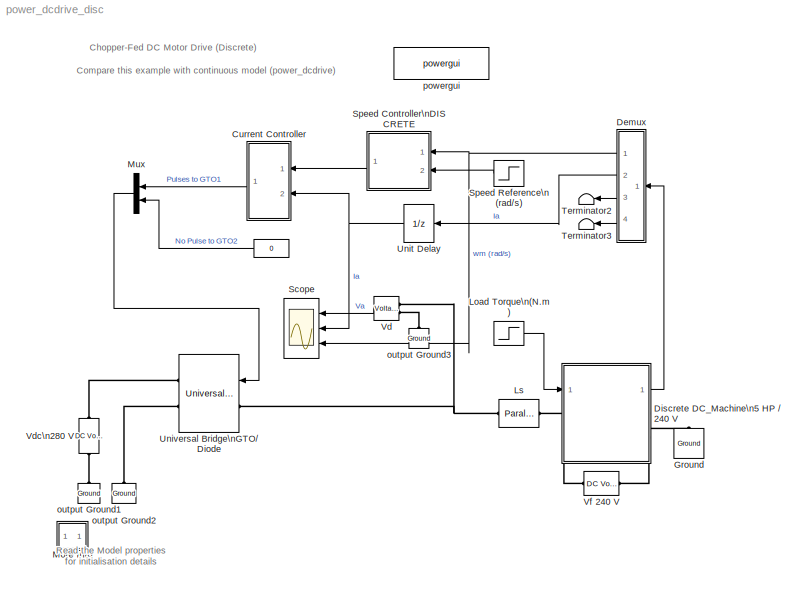
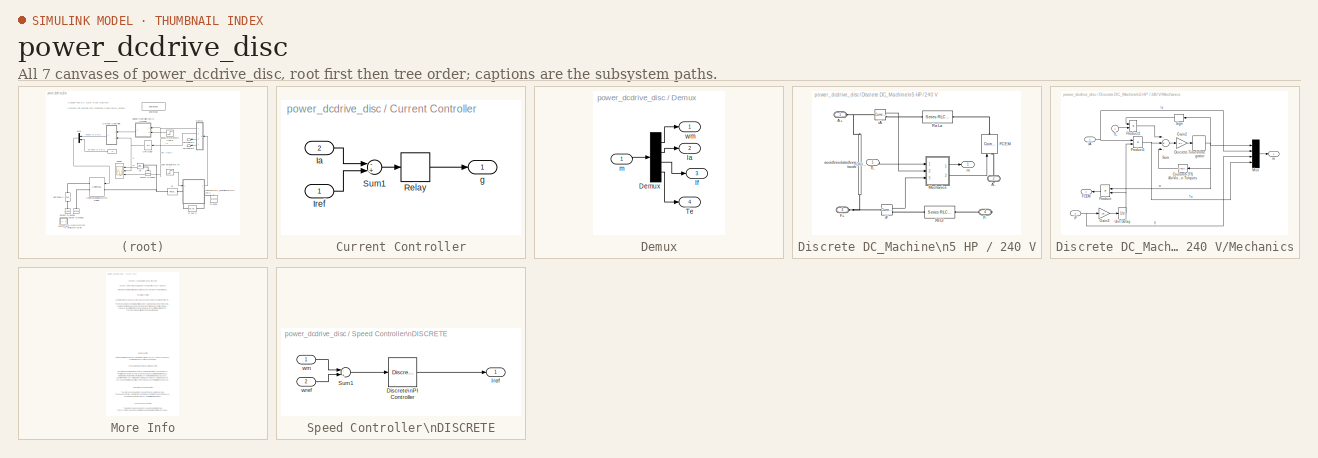
[diagram: thumbnail index - all 7 canvases of the model, root first then tree order]
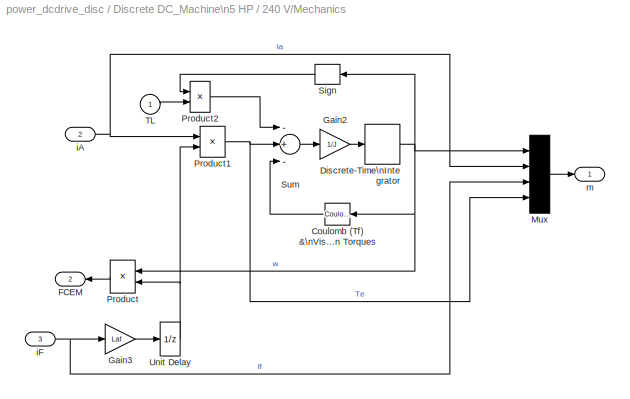
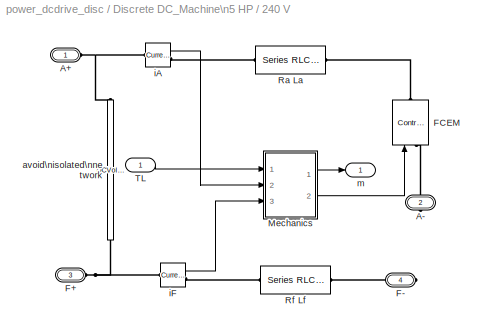
MODEL power_dcdrive_disc
KIND model
CONFIG PreLoadFcn = assignin('base','Ts',[10e-6])
BLOCK [Constant]  
  Value = 0
BLOCK [SubSystem] Current Controller
  MaskDescription = Hysteresis Current Controller
  MaskDisplay = plot(0,0,100,100,[45,45],[35,65],[55,55],[35,65],[45,65],[65,65],[35,55],[35,35])
  MaskEnableString = on
  MaskIconFrame = on
  MaskIconOpaque = off
  MaskIconRotate = none
  MaskIconUnits = autoscale
  MaskPromptString = Hysteresis band (A)
  MaskStyleString = edit
  MaskToolTipString = on
  MaskTunableValueString = on
  MaskValueString = 2
  MaskVariables = h=@1;
  MaskVisibilityString = on
  MinAlgLoopOccurrences = off
  Ports = [2, 1]
  RTWSystemCode = Auto
  TreatAsAtomicUnit = off
BLOCK [Inport] Current Controller/Ia
  IconDisplay = Port number
  LatchInput = off
  Port = 2
BLOCK [Inport] Current Controller/Iref
  IconDisplay = Port number
  LatchInput = off
  Port = 1
BLOCK [Relay] Current Controller/Relay
  OffSwitchValue = -h/2
  OnSwitchValue = h/2
BLOCK [Sum] Current Controller/Sum1
  Inputs = -+
  Ports = [2, 1]
BLOCK [Outport] Current Controller/g
  BusOutputAsStruct = off
  IconDisplay = Port number
  InitialOutput = 0
BLOCK [SubSystem] Demux
  MinAlgLoopOccurrences = off
  Ports = [1, 4]
  RTWSystemCode = Auto
  TreatAsAtomicUnit = off
BLOCK [Demux] Demux/Demux
  Ports = [1, 4]
BLOCK [Outport] Demux/Ia
  BusOutputAsStruct = off
  IconDisplay = Port number
  Port = 2
BLOCK [Outport] Demux/If
  BusOutputAsStruct = off
  IconDisplay = Port number
  Port = 3
BLOCK [Outport] Demux/Te
  BusOutputAsStruct = off
  IconDisplay = Port number
  Port = 4
BLOCK [Inport] Demux/m
  IconDisplay = Port number
  LatchInput = off
  Port = 1
BLOCK [Outport] Demux/wm
  BusOutputAsStruct = off
  IconDisplay = Port number
BLOCK [SubSystem] Discrete DC_Machine\n5 HP // 240 V
  AncestorBlock = powerlib/Machines/Discrete\nDC Machine
  AttributesFormatString = \\n
  LoadFcn = find_system(gcs,'FollowLinks', 'on', 'LookUnderMasks', 'all');
  MaskCallbackString = |||||||
  MaskDescription = This block implements a separately excited DC machine. Access is provided  to the field connections so that the machine can be used as a shunt-connected or a series-connected  DC machine.
  MaskDisplay = plot(-80,-80,80,80,[0,9,18,24,29,30,29,24,18,9,0,-9,-18,-24,-29,-30,-29,-24,-18,-9,0],[30,29,24,18,9,0,-9,-18,-24,-29,-30,-29,-24,-18,-9,0,9,18,24,29,30],[-29,-35,-35,-29],[-8,-8,8,8],[29,35,35,29],[-8,-8,8,8],[-35,-55],[0,0],[35,55],[0,0],[-78,-50,-50,-49,-45,-39,-33,-26,-21,-18,-17,-19,-22,-22,-26,-27,-25,-22,-16,-9,-3,2,6,6,4,1,1,-3,-4,-2,2,7,14,20,26,29,30,28,24,24,21,20,21,25,31,37,44,49,50,5...<+367ch>
  MaskEnableString = on,on,on,on,on,on,on,on
  MaskHelp = web(psbhelp)
  MaskIconFrame = off
  MaskIconOpaque = off
  MaskIconRotate = port
  MaskIconUnits = autoscale
  MaskInitialization = Ra=RLa(1); La=RLa(2);\n\nRf=RLf(1); Lf=RLf(2);\n\n
  MaskPromptString = Armature resistance and inductance [Ra (ohms) La (H) ]|Field resistance and inductance [Rf (ohms) Lf (H) ]|Field-armature mutual inductance Laf (H) :|Total inertia J (kg.m^2)|Viscous friction coefficient Bm (N.m.s)|Coulomb friction torque Tf (N.m)|Initial speed (rad/s) :|Sample Time
  MaskStyleString = edit,edit,edit,edit,edit,edit,edit,edit
  MaskTabNameString = ,,,,,,,
  MaskToolTipString = on,on,on,on,on,on,on,on
  MaskTunableValueString = off,off,off,off,off,off,off,off
  MaskType = Discrete DC machine
  MaskValueString = [0.5  0.01]|[240  0]|1.23|0.05|0.02|0|0|110
  MaskVarAliasString = ,,,,,,,
  MaskVariables = RLa=@1;RLf=@2;Laf=@3;J=@4;Bm=@5;Tf=@6;w0=@7;SampleTime=@8;
  MaskVisibilityString = on,on,on,on,on,on,on,on
  MinAlgLoopOccurrences = off
  Ports = [1, 1, 0, 0, 0, 2, 2]
  RTWSystemCode = Auto
  TreatAsAtomicUnit = off
BLOCK [PMIOPort] Discrete DC_Machine\n5 HP // 240 V/A+
  Port = 1
  Side = Left
BLOCK [PMIOPort] Discrete DC_Machine\n5 HP // 240 V/A-
  Port = 2
  Side = Right
BLOCK [PMIOPort] Discrete DC_Machine\n5 HP // 240 V/F+
  Port = 3
  Side = Left
BLOCK [PMIOPort] Discrete DC_Machine\n5 HP // 240 V/F-
  Port = 4
  Side = Right
BLOCK [Reference] Discrete DC_Machine\n5 HP // 240 V/FCEM  REF=powerlib/Electrical\nSources/Controlled Voltage Source
  Amplitude = 0
  Description = source block
  Frequency = 0
  Initialize = on
  Measurements = None
  Phase = 0
  Ports = [1, 0, 0, 0, 0, 1, 1]
  ShowPortLabels = on
  SourceBlock = powerlib/Electrical\nSources/Controlled Voltage Source
  SourceType = AC
  Tag = PoWeRsYsTeMbLoCk
BLOCK [SubSystem] Discrete DC_Machine\n5 HP // 240 V/Mechanics
  MinAlgLoopOccurrences = off
  Ports = [3, 2]
  RTWSystemCode = Auto
  TreatAsAtomicUnit = off
BLOCK [Reference] Discrete DC_Machine\n5 HP // 240 V/Mechanics/Coulomb (Tf) &\nViscous ( Bm*w) \nFriction Torques  REF=simulink/Discontinuities/Coulomb &\nViscous Friction
  Ports = [1, 1]
  ShowPortLabels = on
  SourceBlock = simulink/Discontinuities/Coulomb &\nViscous Friction
  SourceType = Coulombic and Viscous Friction
  gain = Bm
  offset = Tf
BLOCK [DiscreteIntegrator] Discrete DC_Machine\n5 HP // 240 V/Mechanics/Discrete-Time\nIntegrator
  ExternalReset = none
  ICPrevOutput = DiscIntNeverNeededParam
  ICPrevScaledInput = DiscIntNeverNeededParam
  InitialCondition = w0
  InitialConditionSource = internal
  IntegratorMethod = Integration: Forward Euler
  Ports = [1, 1]
  SampleTime = Ts
BLOCK [Outport] Discrete DC_Machine\n5 HP // 240 V/Mechanics/FCEM
  BusOutputAsStruct = off
  IconDisplay = Port number
  Port = 2
BLOCK [Gain] Discrete DC_Machine\n5 HP // 240 V/Mechanics/Gain2
  Gain = 1/J
BLOCK [Gain] Discrete DC_Machine\n5 HP // 240 V/Mechanics/Gain3
  Gain = Laf
BLOCK [Mux] Discrete DC_Machine\n5 HP // 240 V/Mechanics/Mux
  Ports = [4, 1]
BLOCK [Product] Discrete DC_Machine\n5 HP // 240 V/Mechanics/Product
  Ports = [2, 1]
  RndMeth = Floor
BLOCK [Product] Discrete DC_Machine\n5 HP // 240 V/Mechanics/Product1
  Ports = [2, 1]
  RndMeth = Floor
BLOCK [Product] Discrete DC_Machine\n5 HP // 240 V/Mechanics/Product2
  Ports = [2, 1]
  RndMeth = Floor
BLOCK [Signum] Discrete DC_Machine\n5 HP // 240 V/Mechanics/Sign
  ZeroCross = off
BLOCK [Sum] Discrete DC_Machine\n5 HP // 240 V/Mechanics/Sum
  Inputs = -+-
  Ports = [3, 1]
BLOCK [Inport] Discrete DC_Machine\n5 HP // 240 V/Mechanics/TL
  IconDisplay = Port number
  LatchInput = off
  Port = 1
BLOCK [UnitDelay] Discrete DC_Machine\n5 HP // 240 V/Mechanics/Unit Delay
  SampleTime = Ts
BLOCK [Inport] Discrete DC_Machine\n5 HP // 240 V/Mechanics/iA
  IconDisplay = Port number
  LatchInput = off
  Port = 2
BLOCK [Inport] Discrete DC_Machine\n5 HP // 240 V/Mechanics/iF
  IconDisplay = Port number
  LatchInput = off
  Port = 3
BLOCK [Outport] Discrete DC_Machine\n5 HP // 240 V/Mechanics/m
  BusOutputAsStruct = off
  IconDisplay = Port number
BLOCK [Reference] Discrete DC_Machine\n5 HP // 240 V/Ra La  REF=powerlib/Elements/Series RLC Branch
  Capacitance = inf
  Inductance = La
  LConnTagsString = __new0
  LeftPortType = p1
  Measurements = None
  PhysicalDomain = powersysdomain
  Ports = [0, 0, 0, 0, 0, 1, 1]
  RConnTagsString = __new0
  Resistance = Ra
  RightPortType = p1
  SourceBlock = powerlib/Elements/Series RLC Branch
  SourceType = Series RLC Branch
  SubClassName = unknown
  Tag = PoWeRsYsTeMbLoCk
BLOCK [Reference] Discrete DC_Machine\n5 HP // 240 V/Rf  Lf  REF=powerlib/Elements/Series RLC Branch
  Capacitance = inf
  Inductance = Lf
  LConnTagsString = __new0
  LeftPortType = p1
  Measurements = None
  PhysicalDomain = powersysdomain
  Ports = [0, 0, 0, 0, 0, 1, 1]
  RConnTagsString = __new0
  Resistance = Rf
  RightPortType = p1
  SourceBlock = powerlib/Elements/Series RLC Branch
  SourceType = Series RLC Branch
  SubClassName = unknown
  Tag = PoWeRsYsTeMbLoCk
BLOCK [Inport] Discrete DC_Machine\n5 HP // 240 V/TL
  IconDisplay = Port number
  LatchInput = off
  Port = 1
BLOCK [Reference] Discrete DC_Machine\n5 HP // 240 V/avoid\nisolated\nnetwork  REF=powerlib/Electrical\nSources/DC Voltage Source/DCVoltageSource
  LConnTagsString = a
  LeftPortType = p1
  PhysicalDomain = powersysdomain
  Ports = [0, 0, 0, 0, 0, 1, 1]
  RConnTagsString = __new0
  RightPortType = p1
  SourceBlock = powerlib/Electrical\nSources/DC Voltage Source/DCVoltageSource
  SourceType = InnerPowersysBlock
  SubClassName = unknown
BLOCK [Reference] Discrete DC_Machine\n5 HP // 240 V/iA  REF=powerlib/Measurements/Current Measurement
  OutputType = Magnitude
  PSBequivalent = 0
  PhasorSimulation = off
  Ports = [0, 1, 0, 0, 0, 1, 1]
  ShowPortLabels = on
  SourceBlock = powerlib/Measurements/Current Measurement
  SourceType = Current Measurement
  Tag = PoWeRsYsTeMmEaSuReMeNt
BLOCK [Reference] Discrete DC_Machine\n5 HP // 240 V/iF  REF=powerlib/Measurements/Current Measurement
  OutputType = Magnitude
  PSBequivalent = 0
  PhasorSimulation = off
  Ports = [0, 1, 0, 0, 0, 1, 1]
  ShowPortLabels = on
  SourceBlock = powerlib/Measurements/Current Measurement
  SourceType = Current Measurement
  Tag = PoWeRsYsTeMmEaSuReMeNt
BLOCK [Outport] Discrete DC_Machine\n5 HP // 240 V/m
  BusOutputAsStruct = off
  IconDisplay = Port number
BLOCK [Reference] Ground  REF=powerlib/Elements/Ground
  AttributesFormatString = \\n
  LConnTagsString = a
  LeftPortType = p1
  PhysicalDomain = powersysdomain
  Ports = [0, 0, 0, 0, 0, 1]
  RightPortType = p1
  SourceBlock = powerlib/Elements/Ground
  SourceType = Ground
  SubClassName = unknown
BLOCK [Step] Load Torque\n(N.m) 
  After = 25
  Before = 5
  SampleTime = 0
  Time = 1.5
BLOCK [Reference] Ls  REF=powerlib/Elements/Parallel RLC Branch
  AttributesFormatString = \\n
  Capacitance = 0
  Inductance = 10e-03
  LConnTagsString = a
  LeftPortType = p1
  Measurements = None
  PhysicalDomain = powersysdomain
  Ports = [0, 0, 0, 0, 0, 1, 1]
  RConnTagsString = __new0
  Resistance = inf
  RightPortType = p1
  SourceBlock = powerlib/Elements/Parallel RLC Branch
  SourceType = Parallel RLC Branch
  SubClassName = unknown
BLOCK [SubSystem] More Info
  MaskDisplay = disp('?')
  MaskIconFrame = on
  MaskIconOpaque = on
  MaskIconRotate = none
  MaskIconUnits = autoscale
  MinAlgLoopOccurrences = off
  Ports = []
  RTWSystemCode = Auto
  TreatAsAtomicUnit = off
BLOCK [Mux] Mux
  DisplayOption = bar
  Inputs = 2
  Ports = [2, 1]
BLOCK [Scope] Scope
  DataFormat = StructureWithTime
  LimitDataPoints = off
  NumInputPorts = 3
  Ports = [3]
  SaveName = var
  SaveToWorkspace = on
  TickLabels = on
  TimeRange = 2
  YMax = 400~40~200
  YMin = -100~0~-50
  ZoomMode = xonly
BLOCK [SubSystem] Speed Controller\nDISCRETE
  MaskCallbackString = |||
  MaskDescription = Proportional-Integral Speed Controller
  MaskDisplay = plot(0,0,100,100,[35,35,65],[70,30,30],[35,65],[45,60])
  MaskEnableString = on,on,on,on
  MaskIconFrame = on
  MaskIconOpaque = off
  MaskIconRotate = none
  MaskIconUnits = autoscale
  MaskPromptString = Proportional gain (Kp)|Integral gain (Ki)|Current limit (A)|Sample time (s) :
  MaskStyleString = edit,edit,edit,edit
  MaskTabNameString = ,,,
  MaskToolTipString = on,on,on,on
  MaskTunableValueString = on,on,on,on
  MaskType = PI controller
  MaskValueString = 1.6|16|30|Ts
  MaskVarAliasString = ,,,
  MaskVariables = Kp=@1;Ki=@2;Ilim=@3;Ts=@4;
  MaskVisibilityString = on,on,on,on
  MinAlgLoopOccurrences = off
  Ports = [2, 1]
  RTWSystemCode = Auto
  TreatAsAtomicUnit = off
BLOCK [Reference] Speed Controller\nDISCRETE/Discrete\nPI Controller  REF=powerlib_extras/Discrete \nControl Blocks/Discrete\nPI Controller
  Init = 0
  Ki = Ki
  Kp = Kp
  Par_Limits = [Ilim -Ilim]
  Ports = [1, 1]
  ShowPortLabels = on
  SourceBlock = powerlib_extras/Discrete \nControl Blocks/Discrete\nPI Controller
  SourceType = Discrete PI Controller
  Ts = Ts
BLOCK [Outport] Speed Controller\nDISCRETE/Iref
  BusOutputAsStruct = off
  IconDisplay = Port number
  InitialOutput = 0
BLOCK [Sum] Speed Controller\nDISCRETE/Sum1
  Inputs = -+
  Ports = [2, 1]
BLOCK [Inport] Speed Controller\nDISCRETE/wm
  IconDisplay = Port number
  LatchInput = off
  Port = 1
BLOCK [Inport] Speed Controller\nDISCRETE/wref
  IconDisplay = Port number
  LatchInput = off
  Port = 2
BLOCK [Step] Speed Reference\n(rad//s)
  After = 160
  Before = 120
  SampleTime = 0
  Time = 0.8
BLOCK [Terminator] Terminator2
BLOCK [Terminator] Terminator3
BLOCK [UnitDelay] Unit Delay
  SampleTime = Ts
BLOCK [Reference] Universal Bridge\nGTO//Diode  REF=powerlib/Power\nElectronics/Universal Bridge
  Arms = 1
  AttributesFormatString = \\n
  Device = GTO / Diodes
  ForwardVoltage = .8
  ForwardVoltages = [  1  1  ]
  GTOparameters = [ 10e-6 , 20e-6 ]
  IGBTparameters = [ 1e-6 , 2e-6 ]
  Lon = 0
  Measurements = None
  Ports = [1, 0, 0, 0, 0, 1, 2]
  Ron = 0.05
  ShowPortLabels = on
  SnubberCapacitance = inf
  SnubberResistance = 10000
  SourceBlock = powerlib/Power\nElectronics/Universal Bridge
  SourceType = Universal Bridge
BLOCK [Reference] Vd  REF=powerlib/Measurements/Voltage Measurement
  AttributesFormatString = \\n
  OutputType = Magnitude
  PSBequivalent = 0
  PhasorSimulation = off
  Ports = [0, 1, 0, 0, 0, 2]
  ShowPortLabels = on
  SourceBlock = powerlib/Measurements/Voltage Measurement
  SourceType = Voltage Measurement
  Tag = PoWeRsYsTeMmEaSuReMeNt
BLOCK [Reference] Vdc\n280 V   REF=powerlib/Electrical\nSources/DC Voltage Source
  Amplitude = 280
  AttributesFormatString = \\n
  Description = source block
  Measurements = None
  Ports = [0, 0, 0, 0, 0, 1, 1]
  ShowPortLabels = on
  SourceBlock = powerlib/Electrical\nSources/DC Voltage Source
  SourceType = DC Voltage Source
BLOCK [Reference] Vf 240 V  REF=powerlib/Electrical\nSources/DC Voltage Source
  Amplitude = 240
  AttributesFormatString = \\n
  Description = source block
  Measurements = None
  Ports = [0, 0, 0, 0, 0, 1, 1]
  ShowPortLabels = on
  SourceBlock = powerlib/Electrical\nSources/DC Voltage Source
  SourceType = DC Voltage Source
BLOCK [Reference] output Ground1  REF=powerlib/Elements/Ground
  AttributesFormatString = \\n
  LConnTagsString = a
  LeftPortType = p1
  PhysicalDomain = powersysdomain
  Ports = [0, 0, 0, 0, 0, 1]
  RightPortType = p1
  SourceBlock = powerlib/Elements/Ground
  SourceType = Ground
  SubClassName = unknown
BLOCK [Reference] output Ground2  REF=powerlib/Elements/Ground
  AttributesFormatString = \\n
  LConnTagsString = a
  LeftPortType = p1
  PhysicalDomain = powersysdomain
  Ports = [0, 0, 0, 0, 0, 1]
  RightPortType = p1
  SourceBlock = powerlib/Elements/Ground
  SourceType = Ground
  SubClassName = unknown
BLOCK [Reference] output Ground3  REF=powerlib/Elements/Ground
  AttributesFormatString = \\n
  LConnTagsString = a
  LeftPortType = p1
  PhysicalDomain = powersysdomain
  Ports = [0, 0, 0, 0, 0, 1]
  RightPortType = p1
  SourceBlock = powerlib/Elements/Ground
  SourceType = Ground
  SubClassName = unknown
BLOCK [Reference] powergui  REF=powerlib/powergui
  DisplayStyle = off
  Frange = [0:2:500]
  FreqAxis = off
  MaxFrequency = 1000
  Ports = []
  Priority = 2
  RmsSteady = 1
  ShowPortLabels = on
  SourceBlock = powerlib/powergui
  SourceType = PSB option menu block
  StartTime = 0.0
  Ts = 10e-6
  Xlog = on
  Ylog = off
  ZoomFFT = on
  cycles = 1
  display = off
  echomessages = off
  frequency = 60
  frequencyindice = 1
  frequencyindicesteady = 1
  fundamental = 60
  methode = off
  save = off
  variable = ZData
ANNOTATION (root): Compare this example with continuous model (power_dcdrive)
ANNOTATION (root): Chopper-Fed DC Motor Drive (Discrete)
ANNOTATION (root): Read the Model properties\nfor initialisation details
ANNOTATION More Info: 0< t < 0.8 s: Starting and Steady State Operation
ANNOTATION More Info: A DC motor is fed by a DC source through a chopper which consists of GTO thyristor and a free-wheeling diode.\n \nThe GTO and diode are simulated with the Universal Bridge block where the number of arms has been set to 1\nand the specified power electronic device is GTO/Diode. Each switch on the block icon represents a GTO/antiparallel diode pair.\nPulses are sent to the top GTO1 only. No pulses a...<+961ch>
ANNOTATION More Info: Chopper-Fed DC Motor Drive (Discrete)
ANNOTATION More Info: Circuit Description
ANNOTATION More Info: Demonstration
ANNOTATION More Info: During this period, the load torque is TL = 5.N.m and the motor reaches the reference speed (wref = 120 rad/s) given to the speed controller .\nThe initial values of reference torque and speed are set in the two Step blocks connected to the TL torque input of the motor. \nNotice that during the motor starting the current is maintained to 30 A, according to the current limit set in the speed regula...<+228ch>
ANNOTATION More Info: H. LeHuy (Universite Laval, Quebec) and G. Sybille (Hydro-Quebec)
ANNOTATION More Info: Note: This example is similar to the continuous version also provided in the Demos library, but discretization allows faster simulation.
ANNOTATION More Info: Start the simulation and observe the motor voltage (Va), current (Ia) and speed (wm) on the scope.\nThe following observations can be made:
ANNOTATION More Info: The load torque is suddenly increased from 5 N.m to 25 N.m.\nThe current increases to 23 A, while the speed is maintained at the 160 rad/s set point.
ANNOTATION More Info: The reference speed is increased from 120 rad/s to 160 rad/s.\nThe speed controller regulates the speed in approximately 0.25 s, and the average current stabilizes at 6.6 A. \nDuring the transient period, current is still maintained at 30 A.
ANNOTATION More Info: t = 0.8 s : Reference Speed Step
ANNOTATION More Info: t = 1.5 s : Load Torque Step
LINE  :1 -> Mux:2
LINE Current Controller/Ia:1 -> Current Controller/Sum1:1
LINE Current Controller/Iref:1 -> Current Controller/Sum1:2
LINE Current Controller/Relay:1 -> Current Controller/g:1
LINE Current Controller/Sum1:1 -> Current Controller/Relay:1
LINE Current Controller:1 -> Mux:1
LINE Demux/Demux:1 -> Demux/wm:1
LINE Demux/Demux:2 -> Demux/Ia:1
LINE Demux/Demux:3 -> Demux/If:1
LINE Demux/Demux:4 -> Demux/Te:1
LINE Demux/m:1 -> Demux/Demux:1
NET Demux:1 -> Scope:3, Speed Controller\nDISCRETE:1
LINE Demux:2 -> Unit Delay:1
LINE Demux:3 -> Terminator2:1
LINE Demux:4 -> Terminator3:1
LINE Discrete DC_Machine\n5 HP // 240 V/Mechanics/Coulomb (Tf) &\nViscous ( Bm*w) \nFriction Torques:1 -> Discrete DC_Machine\n5 HP // 240 V/Mechanics/Sum:3
NET Discrete DC_Machine\n5 HP // 240 V/Mechanics/Discrete-Time\nIntegrator:1 -> Discrete DC_Machine\n5 HP // 240 V/Mechanics/Coulomb (Tf) &\nViscous ( Bm*w) \nFriction Torques:1, Discrete DC_Machine\n5 HP // 240 V/Mechanics/Mux:1, Discrete DC_Machine\n5 HP // 240 V/Mechanics/Product:1, Discrete DC_Machine\n5 HP // 240 V/Mechanics/Sign:1
LINE Discrete DC_Machine\n5 HP // 240 V/Mechanics/Gain2:1 -> Discrete DC_Machine\n5 HP // 240 V/Mechanics/Discrete-Time\nIntegrator:1
LINE Discrete DC_Machine\n5 HP // 240 V/Mechanics/Gain3:1 -> Discrete DC_Machine\n5 HP // 240 V/Mechanics/Unit Delay:1
LINE Discrete DC_Machine\n5 HP // 240 V/Mechanics/Mux:1 -> Discrete DC_Machine\n5 HP // 240 V/Mechanics/m:1
NET Discrete DC_Machine\n5 HP // 240 V/Mechanics/Product1:1 -> Discrete DC_Machine\n5 HP // 240 V/Mechanics/Mux:4, Discrete DC_Machine\n5 HP // 240 V/Mechanics/Sum:2
LINE Discrete DC_Machine\n5 HP // 240 V/Mechanics/Product2:1 -> Discrete DC_Machine\n5 HP // 240 V/Mechanics/Sum:1
LINE Discrete DC_Machine\n5 HP // 240 V/Mechanics/Product:1 -> Discrete DC_Machine\n5 HP // 240 V/Mechanics/FCEM:1
LINE Discrete DC_Machine\n5 HP // 240 V/Mechanics/Sign:1 -> Discrete DC_Machine\n5 HP // 240 V/Mechanics/Product2:1
LINE Discrete DC_Machine\n5 HP // 240 V/Mechanics/Sum:1 -> Discrete DC_Machine\n5 HP // 240 V/Mechanics/Gain2:1
LINE Discrete DC_Machine\n5 HP // 240 V/Mechanics/TL:1 -> Discrete DC_Machine\n5 HP // 240 V/Mechanics/Product2:2
NET Discrete DC_Machine\n5 HP // 240 V/Mechanics/Unit Delay:1 -> Discrete DC_Machine\n5 HP // 240 V/Mechanics/Product1:2, Discrete DC_Machine\n5 HP // 240 V/Mechanics/Product:2
NET Discrete DC_Machine\n5 HP // 240 V/Mechanics/iA:1 -> Discrete DC_Machine\n5 HP // 240 V/Mechanics/Mux:2, Discrete DC_Machine\n5 HP // 240 V/Mechanics/Product1:1
NET Discrete DC_Machine\n5 HP // 240 V/Mechanics/iF:1 -> Discrete DC_Machine\n5 HP // 240 V/Mechanics/Gain3:1, Discrete DC_Machine\n5 HP // 240 V/Mechanics/Mux:3
LINE Discrete DC_Machine\n5 HP // 240 V/Mechanics:1 -> Discrete DC_Machine\n5 HP // 240 V/m:1
LINE Discrete DC_Machine\n5 HP // 240 V/Mechanics:2 -> Discrete DC_Machine\n5 HP // 240 V/FCEM:1
LINE Discrete DC_Machine\n5 HP // 240 V/TL:1 -> Discrete DC_Machine\n5 HP // 240 V/Mechanics:1
LINE Discrete DC_Machine\n5 HP // 240 V/iA:1 -> Discrete DC_Machine\n5 HP // 240 V/Mechanics:2
LINE Discrete DC_Machine\n5 HP // 240 V/iF:1 -> Discrete DC_Machine\n5 HP // 240 V/Mechanics:3
LINE Discrete DC_Machine\n5 HP // 240 V:1 -> Demux:1
LINE Load Torque\n(N.m) :1 -> Discrete DC_Machine\n5 HP // 240 V:1
LINE Mux:1 -> Universal Bridge\nGTO//Diode:1
LINE Speed Controller\nDISCRETE/Discrete\nPI Controller:1 -> Speed Controller\nDISCRETE/Iref:1
LINE Speed Controller\nDISCRETE/Sum1:1 -> Speed Controller\nDISCRETE/Discrete\nPI Controller:1
LINE Speed Controller\nDISCRETE/wm:1 -> Speed Controller\nDISCRETE/Sum1:1
LINE Speed Controller\nDISCRETE/wref:1 -> Speed Controller\nDISCRETE/Sum1:2
LINE Speed Controller\nDISCRETE:1 -> Current Controller:1
LINE Speed Reference\n(rad//s):1 -> Speed Controller\nDISCRETE:2
NET Unit Delay:1 -> Current Controller:2, Scope:2
LINE Vd:1 -> Scope:1
PNET net1: Discrete DC_Machine\n5 HP // 240 V/A+:RConn1 -- Discrete DC_Machine\n5 HP // 240 V/avoid\nisolated\nnetwork:LConn1 -- Discrete DC_Machine\n5 HP // 240 V/iA:LConn1
PLINE Discrete DC_Machine\n5 HP // 240 V/A-:RConn1 -- Discrete DC_Machine\n5 HP // 240 V/FCEM:LConn1
PNET net2: Discrete DC_Machine\n5 HP // 240 V/F+:RConn1 -- Discrete DC_Machine\n5 HP // 240 V/avoid\nisolated\nnetwork:RConn1 -- Discrete DC_Machine\n5 HP // 240 V/iF:LConn1
PLINE Discrete DC_Machine\n5 HP // 240 V/F-:RConn1 -- Discrete DC_Machine\n5 HP // 240 V/Rf  Lf:RConn1
PLINE Discrete DC_Machine\n5 HP // 240 V/FCEM:RConn1 -- Discrete DC_Machine\n5 HP // 240 V/Ra La:RConn1
PLINE Discrete DC_Machine\n5 HP // 240 V/Ra La:LConn1 -- Discrete DC_Machine\n5 HP // 240 V/iA:RConn1
PLINE Discrete DC_Machine\n5 HP // 240 V/Rf  Lf:LConn1 -- Discrete DC_Machine\n5 HP // 240 V/iF:RConn1
PLINE Discrete DC_Machine\n5 HP // 240 V:LConn1 -- Ls:RConn1
PLINE Discrete DC_Machine\n5 HP // 240 V:LConn2 -- Vf 240 V:RConn1
PLINE Discrete DC_Machine\n5 HP // 240 V:RConn1 -- Ground:LConn1
PLINE Discrete DC_Machine\n5 HP // 240 V:RConn2 -- Vf 240 V:LConn1
PNET net3: Ls:LConn1 -- Universal Bridge\nGTO//Diode:LConn1 -- Vd:LConn1
PLINE Universal Bridge\nGTO//Diode:RConn1 -- Vdc\n280 V :RConn1
PLINE Universal Bridge\nGTO//Diode:RConn2 -- output Ground2:LConn1
PLINE Vd:LConn2 -- output Ground3:LConn1
PLINE Vdc\n280 V :LConn1 -- output Ground1:LConn1
note: NET lines group one-source signal fan-out (src -> all destinations, sorted); 1:1 wires keep LINE; PNET lines group multi-terminal physical nets as a canonical sorted terminal list (undirected conserving connections); 2-terminal nets keep the pairwise PLINE form
